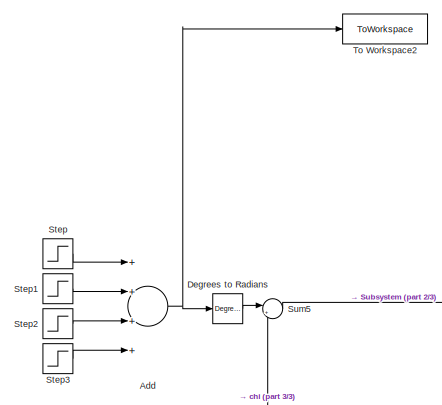
[diagram: root canvas - part 1/3, top left region]
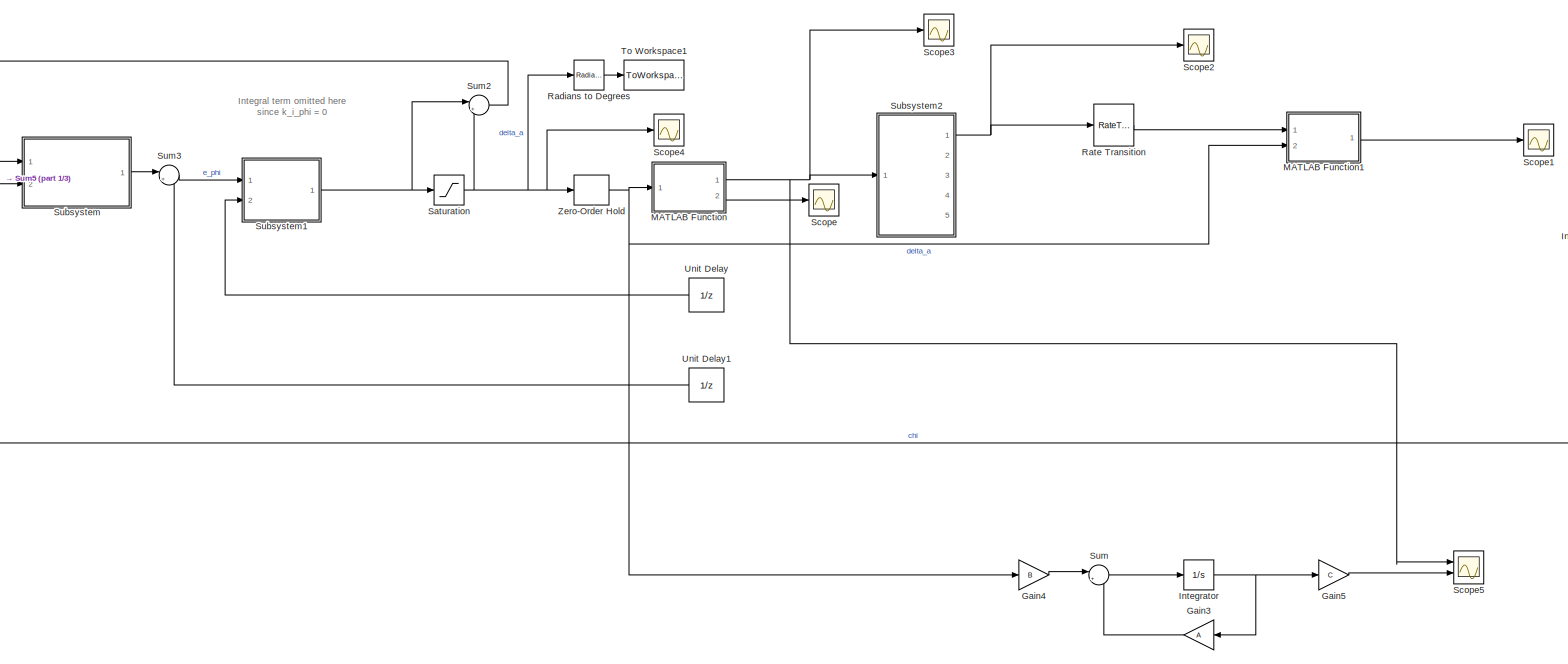
[diagram: root canvas - part 2/3, center side, full height]
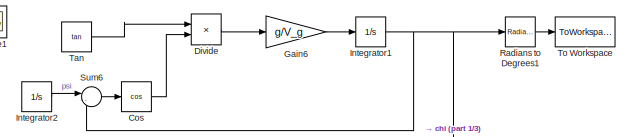
[diagram: root canvas - part 3/3, middle right region]
MODEL slx_63841fce203e
KIND model
CONFIG AbsTol = auto
CONFIG EnableMultiTasking = off
CONFIG FixedStep = 0.01
CONFIG MaxStep = auto
CONFIG MinStep = auto
CONFIG RelTol = 1e-3
CONFIG SampleTimeConstraint = Unconstrained
CONFIG Solver = FixedStepAuto
CONFIG SolverName = FixedStepAuto
CONFIG StartTime = 0.0
CONFIG StopTime = 200
BLOCK [Sum] Add
  InputSameDT = off
  Inputs = ++++
  OutDataTypeStr = Inherit: Inherit via internal rule
  Ports = [4, 1]
  SaturateOnIntegerOverflow = off
BLOCK [Trigonometry] Cos
  Operator = cos
  Ports = [1, 1]
BLOCK [Reference] Degrees to Radians  REF=simulink_extras/Transformations/Degrees to
Radians
  Ports = [1, 1]
  SourceBlock = simulink_extras/Transformations/Degrees to\nRadians
  SourceProductBaseCode = SL
  SourceProductName = Simulink
  SourceType = DegreesToRadians
BLOCK [Product] Divide
  InputSameDT = off
  Inputs = **
  OutDataTypeStr = Inherit: Inherit via internal rule
  Ports = [2, 1]
  RndMeth = Floor
  SaturateOnIntegerOverflow = off
BLOCK [Gain] Gain3
  Gain = A
  Multiplication = Matrix(K*u)
  OutDataTypeStr = Inherit: Inherit via internal rule
  ParamDataTypeStr = Inherit: Inherit via internal rule
  SaturateOnIntegerOverflow = off
BLOCK [Gain] Gain4
  Gain = B
  Multiplication = Matrix(K*u)
  OutDataTypeStr = Inherit: Inherit via internal rule
  ParamDataTypeStr = Inherit: Inherit via internal rule
  SaturateOnIntegerOverflow = off
BLOCK [Gain] Gain5
  Gain = C
  Multiplication = Matrix(K*u)
  OutDataTypeStr = Inherit: Inherit via internal rule
  ParamDataTypeStr = Inherit: Inherit via internal rule
  SaturateOnIntegerOverflow = off
BLOCK [Gain] Gain6
  Gain = g/V_g
  OutDataTypeStr = Inherit: Inherit via internal rule
  ParamDataTypeStr = Inherit: Inherit via internal rule
  SaturateOnIntegerOverflow = off
BLOCK [Integrator] Integrator
  Ports = [1, 1]
BLOCK [Integrator] Integrator1
  Ports = [1, 1]
BLOCK [Integrator] Integrator2
  Ports = [1, 1]
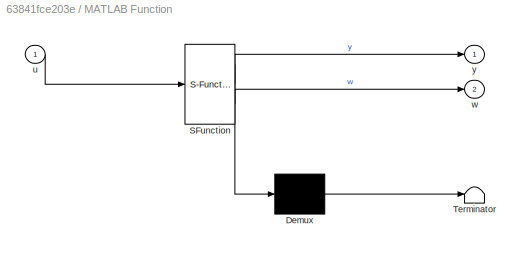
BLOCK [SubSystem] MATLAB Function
  ErrorFcn = Stateflow.Translate.translate
  PermitHierarchicalResolution = ExplicitOnly
  Ports = [1, 2]
  RequestExecContextInheritance = off
  SFBlockType = MATLAB Function
  TreatAsAtomicUnit = on
BLOCK [Demux] MATLAB Function/ Demux 
  Outputs = 1
  Ports = [1, 1]
BLOCK [S-Function] MATLAB Function/ SFunction 
  EnableBusSupport = on
  FunctionName = sf_sfun
  PortCounts = [1 3]
  Ports = [1, 3]
  SFcnIsStateOwnerBlock = off
  SFunctionDeploymentMode = off
  Tag = Stateflow S-Function autopilot_with_kalman 2
BLOCK [Terminator] MATLAB Function/ Terminator 
BLOCK [Inport] MATLAB Function/u
  IconDisplay = Port number
BLOCK [Outport] MATLAB Function/w
  IconDisplay = Port number
  Port = 2
BLOCK [Outport] MATLAB Function/y
  IconDisplay = Port number
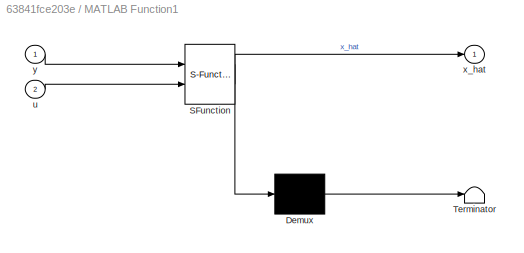
BLOCK [SubSystem] MATLAB Function1
  ErrorFcn = Stateflow.Translate.translate
  PermitHierarchicalResolution = ExplicitOnly
  Ports = [2, 1]
  RequestExecContextInheritance = off
  SFBlockType = MATLAB Function
  TreatAsAtomicUnit = on
BLOCK [Demux] MATLAB Function1/ Demux 
  Outputs = 1
  Ports = [1, 1]
BLOCK [S-Function] MATLAB Function1/ SFunction 
  EnableBusSupport = on
  FunctionName = sf_sfun
  PortCounts = [2 2]
  Ports = [2, 2]
  SFcnIsStateOwnerBlock = off
  SFunctionDeploymentMode = off
  Tag = Stateflow S-Function autopilot_with_kalman 1
BLOCK [Terminator] MATLAB Function1/ Terminator 
BLOCK [Inport] MATLAB Function1/u
  IconDisplay = Port number
  Port = 2
BLOCK [Outport] MATLAB Function1/x_hat
  IconDisplay = Port number
BLOCK [Inport] MATLAB Function1/y
  IconDisplay = Port number
BLOCK [Reference] Radians to Degrees  REF=simulink_extras/Transformations/Radians
to Degrees
  Ports = [1, 1]
  SourceBlock = simulink_extras/Transformations/Radians\nto Degrees
  SourceProductBaseCode = SL
  SourceProductName = Simulink
  SourceType = RadiansToDegrees
BLOCK [Reference] Radians to Degrees1  REF=simulink_extras/Transformations/Radians
to Degrees
  Ports = [1, 1]
  SourceBlock = simulink_extras/Transformations/Radians\nto Degrees
  SourceProductBaseCode = SL
  SourceProductName = Simulink
  SourceType = RadiansToDegrees
BLOCK [RateTransition] Rate Transition
BLOCK [Saturate] Saturation
  InputPortMap = u0
  LowerLimit = -pi/6
  Ports = [1, 1]
  UpperLimit = pi/6
BLOCK [Scope] Scope
  Floating = off
  NumInputPorts = 1
  Ports = [1]
  ScopeSpecificationString = Simulink.scopes.TimeScopeBlockCfg('CurrentConfiguration', extmgr.ConfigurationSet(extmgr.Configuration('Core','General UI',true),extmgr.Configuration('Core','Source UI',true),extmgr.Configuration('Sources','WiredSimulink',true),extmgr.Configuration('Visuals','Time Domain',true,'SerializedDisplays',{struct('MinYLimReal','-0.00487','MaxYLimReal','0.00504','YLabelReal','','MinYLimMag','0.00000','MaxY...<+1427ch>
BLOCK [Scope] Scope1
  Floating = off
  NumInputPorts = 1
  Ports = [1]
  ScopeSpecificationString = Simulink.scopes.TimeScopeBlockCfg('CurrentConfiguration', extmgr.ConfigurationSet(extmgr.Configuration('Core','General UI',true),extmgr.Configuration('Core','Source UI',true),extmgr.Configuration('Sources','WiredSimulink',true,'DataLoggingVariableName','ScopeData1'),extmgr.Configuration('Visuals','Time Domain',true),extmgr.Configuration('Tools','Plot Navigation',true),extmgr.Configuration('Tools',...<+40ch>
BLOCK [Scope] Scope2
  Floating = off
  NumInputPorts = 1
  Ports = [1]
  ScopeSpecificationString = Simulink.scopes.TimeScopeBlockCfg('CurrentConfiguration', extmgr.ConfigurationSet(extmgr.Configuration('Core','General UI',true),extmgr.Configuration('Core','Source UI',true),extmgr.Configuration('Sources','WiredSimulink',true,'DataLoggingVariableName','ScopeData2'),extmgr.Configuration('Visuals','Time Domain',true,'SerializedDisplays',{struct('MinYLimReal','-2.6794','MaxYLimReal','2.1601','YLabel...<+1384ch>
BLOCK [Scope] Scope3
  Floating = off
  NumInputPorts = 1
  Ports = [1]
  ScopeSpecificationString = Simulink.scopes.TimeScopeBlockCfg('CurrentConfiguration', extmgr.ConfigurationSet(extmgr.Configuration('Core','General UI',true),extmgr.Configuration('Core','Source UI',true),extmgr.Configuration('Sources','WiredSimulink',true,'DataLoggingVariableName','ScopeData3'),extmgr.Configuration('Visuals','Time Domain',true,'SerializedDisplays',{struct('MinYLimReal','-12.85599','MaxYLimReal','1.49964','YLa...<+1448ch>
BLOCK [Scope] Scope4
  Floating = off
  NumInputPorts = 1
  Ports = [1]
  ScopeSpecificationString = Simulink.scopes.TimeScopeBlockCfg('CurrentConfiguration', extmgr.ConfigurationSet(extmgr.Configuration('Core','General UI',true),extmgr.Configuration('Core','Source UI',true),extmgr.Configuration('Sources','WiredSimulink',true,'DataLoggingVariableName','ScopeData4'),extmgr.Configuration('Visuals','Time Domain',true,'SerializedDisplays',{struct('MinYLimReal','-0.06545','MaxYLimReal','0.58905','YLab...<+1366ch>
BLOCK [Scope] Scope5
  Floating = off
  NumInputPorts = 2
  Ports = [2]
  ScopeSpecificationString = Simulink.scopes.TimeScopeBlockCfg('CurrentConfiguration', extmgr.ConfigurationSet(extmgr.Configuration('Core','General UI',true),extmgr.Configuration('Core','Source UI',true),extmgr.Configuration('Sources','WiredSimulink',true,'DataLoggingVariableName','ScopeData5'),extmgr.Configuration('Visuals','Time Domain',true,'SerializedDisplays',{struct('MinYLimReal','-12.93904','MaxYLimReal','1.50887','YLa...<+1488ch>
BLOCK [Step] Step
  After = 7.5
  SampleTime = 0
  Time = 100
BLOCK [Step] Step1
  After = 7.5
  SampleTime = 0
  Time = 150
BLOCK [Step] Step2
  After = -15
  SampleTime = 0
  Time = 250
BLOCK [Step] Step3
  After = 0
  SampleTime = 0
  Time = 300
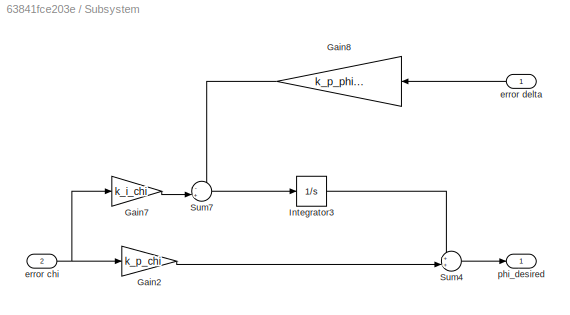
BLOCK [SubSystem] Subsystem
  Ports = [2, 1]
  RequestExecContextInheritance = off
BLOCK [Gain] Subsystem/Gain2
  Gain = k_p_chi
  OutDataTypeStr = Inherit: Inherit via internal rule
  ParamDataTypeStr = Inherit: Inherit via internal rule
  SaturateOnIntegerOverflow = off
BLOCK [Gain] Subsystem/Gain7
  Gain = k_i_chi
  OutDataTypeStr = Inherit: Inherit via internal rule
  ParamDataTypeStr = Inherit: Inherit via internal rule
  SaturateOnIntegerOverflow = off
BLOCK [Gain] Subsystem/Gain8
  Gain = k_p_phi*k_p_chi*0.5
  OutDataTypeStr = Inherit: Inherit via internal rule
  ParamDataTypeStr = Inherit: Inherit via internal rule
  SaturateOnIntegerOverflow = off
BLOCK [Integrator] Subsystem/Integrator3
  Ports = [1, 1]
BLOCK [Sum] Subsystem/Sum4
  IconShape = round
  InputSameDT = off
  Inputs = ++|
  OutDataTypeStr = Inherit: Inherit via internal rule
  Ports = [2, 1]
  SaturateOnIntegerOverflow = off
BLOCK [Sum] Subsystem/Sum7
  IconShape = round
  InputSameDT = off
  Inputs = -+|
  OutDataTypeStr = Inherit: Inherit via internal rule
  Ports = [2, 1]
  SaturateOnIntegerOverflow = off
BLOCK [Inport] Subsystem/error chi
  IconDisplay = Port number
  Port = 2
BLOCK [Inport] Subsystem/error delta
  IconDisplay = Port number
BLOCK [Outport] Subsystem/phi_desired
  IconDisplay = Port number
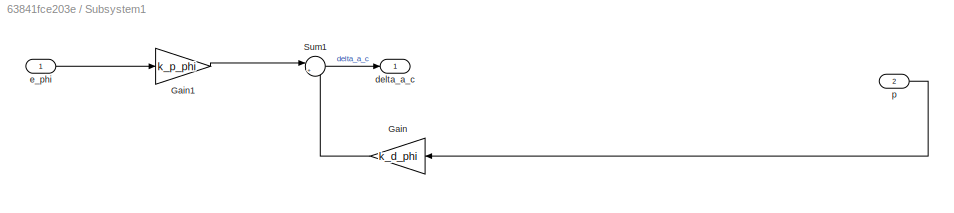
BLOCK [SubSystem] Subsystem1
  Ports = [2, 1]
  RequestExecContextInheritance = off
BLOCK [Gain] Subsystem1/Gain
  Gain = k_d_phi
  OutDataTypeStr = Inherit: Inherit via internal rule
  ParamDataTypeStr = Inherit: Inherit via internal rule
  SaturateOnIntegerOverflow = off
BLOCK [Gain] Subsystem1/Gain1
  Gain = k_p_phi
  OutDataTypeStr = Inherit: Inherit via internal rule
  ParamDataTypeStr = Inherit: Inherit via internal rule
  SaturateOnIntegerOverflow = off
BLOCK [Sum] Subsystem1/Sum1
  IconShape = round
  InputSameDT = off
  Inputs = |+-
  OutDataTypeStr = Inherit: Inherit via internal rule
  Ports = [2, 1]
  SaturateOnIntegerOverflow = off
BLOCK [Outport] Subsystem1/delta_a_c
  IconDisplay = Port number
BLOCK [Inport] Subsystem1/e_phi
  IconDisplay = Port number
BLOCK [Inport] Subsystem1/p
  IconDisplay = Port number
  Port = 2
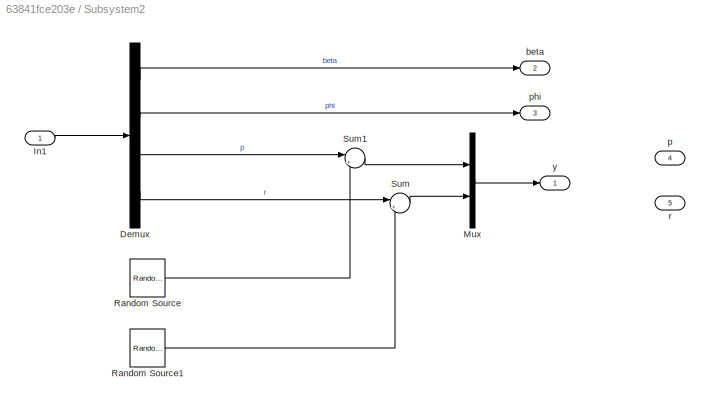
BLOCK [SubSystem] Subsystem2
  Ports = [1, 5]
  RequestExecContextInheritance = off
BLOCK [Demux] Subsystem2/Demux
  DisplayOption = bar
  Ports = [1, 4]
BLOCK [Inport] Subsystem2/In1
  IconDisplay = Port number
BLOCK [Mux] Subsystem2/Mux
  DisplayOption = bar
  Inputs = 2
  Ports = [2, 1]
BLOCK [Reference] Subsystem2/Random Source  REF=dspsrcs4/Random
Source
  Ports = [0, 1]
  SourceBlock = dspsrcs4/Random\nSource
  SourceProductBaseCode = DS
  SourceProductName = DSP System Toolbox
  SourceType = Random Source
  UserDataPersistent = on
BLOCK [Reference] Subsystem2/Random Source1  REF=dspsrcs4/Random
Source
  Ports = [0, 1]
  SourceBlock = dspsrcs4/Random\nSource
  SourceProductBaseCode = DS
  SourceProductName = DSP System Toolbox
  SourceType = Random Source
  UserDataPersistent = on
BLOCK [Sum] Subsystem2/Sum
  IconShape = round
  InputSameDT = off
  Inputs = |++
  OutDataTypeStr = Inherit: Inherit via internal rule
  Ports = [2, 1]
  SaturateOnIntegerOverflow = off
BLOCK [Sum] Subsystem2/Sum1
  IconShape = round
  InputSameDT = off
  Inputs = |++
  OutDataTypeStr = Inherit: Inherit via internal rule
  Ports = [2, 1]
  SaturateOnIntegerOverflow = off
BLOCK [Outport] Subsystem2/beta
  IconDisplay = Port number
  Port = 2
BLOCK [Outport] Subsystem2/p
  IconDisplay = Port number
  Port = 4
BLOCK [Outport] Subsystem2/phi
  IconDisplay = Port number
  Port = 3
BLOCK [Outport] Subsystem2/r
  IconDisplay = Port number
  Port = 5
BLOCK [Outport] Subsystem2/y
  IconDisplay = Port number
BLOCK [Sum] Sum
  IconShape = round
  InputSameDT = off
  Inputs = |++
  OutDataTypeStr = Inherit: Inherit via internal rule
  Ports = [2, 1]
  SaturateOnIntegerOverflow = off
BLOCK [Sum] Sum2
  IconShape = round
  InputSameDT = off
  Inputs = |+-
  OutDataTypeStr = Inherit: Inherit via internal rule
  Ports = [2, 1]
  SaturateOnIntegerOverflow = off
BLOCK [Sum] Sum3
  IconShape = round
  InputSameDT = off
  Inputs = |+-
  OutDataTypeStr = Inherit: Inherit via internal rule
  Ports = [2, 1]
  SaturateOnIntegerOverflow = off
BLOCK [Sum] Sum5
  IconShape = round
  InputSameDT = off
  Inputs = |+-
  OutDataTypeStr = Inherit: Inherit via internal rule
  Ports = [2, 1]
  SaturateOnIntegerOverflow = off
BLOCK [Sum] Sum6
  IconShape = round
  InputSameDT = off
  Inputs = |-+
  OutDataTypeStr = Inherit: Inherit via internal rule
  Ports = [2, 1]
  SaturateOnIntegerOverflow = off
BLOCK [Trigonometry] Tan
  Operator = tan
  Ports = [1, 1]
BLOCK [ToWorkspace] To Workspace
  FixptAsFi = on
  MaxDataPoints = inf
  Ports = [1]
  SampleTime = -1
  SaveFormat = Timeseries
  VariableName = chi
BLOCK [ToWorkspace] To Workspace1
  FixptAsFi = on
  MaxDataPoints = inf
  Ports = [1]
  SampleTime = -1
  SaveFormat = Timeseries
  VariableName = delta_control
BLOCK [ToWorkspace] To Workspace2
  FixptAsFi = on
  MaxDataPoints = inf
  Ports = [1]
  SampleTime = -1
  SaveFormat = Timeseries
  VariableName = chi_control
BLOCK [UnitDelay] Unit Delay
  HasFrameUpgradeWarning = on
  SampleTime = -1
BLOCK [UnitDelay] Unit Delay1
  HasFrameUpgradeWarning = on
  SampleTime = -1
BLOCK [ZeroOrderHold] Zero-Order Hold
  SampleTime = -1
ANNOTATION (root): Integral term omitted here since k_i_phi = 0
NET Add:1 -> Degrees to Radians:1, To Workspace2:1
LINE Cos:1 -> Divide:2
LINE Degrees to Radians:1 -> Sum5:1
LINE Divide:1 -> Gain6:1
LINE Gain3:1 -> Sum:2
LINE Gain4:1 -> Sum:1
LINE Gain5:1 -> Scope5:2
LINE Gain6:1 -> Integrator1:1
NET Integrator1:1 -> Radians to Degrees1:1, Sum5:2, Sum6:2
LINE Integrator2:1 -> Sum6:1
NET Integrator:1 -> Gain3:1, Gain5:1
LINE MATLAB Function1:1 -> Scope1:1
NET MATLAB Function:1 -> Scope3:1, Scope5:1, Subsystem2:1
LINE MATLAB Function:2 -> Scope:1
LINE Radians to Degrees1:1 -> To Workspace:1
LINE Radians to Degrees:1 -> To Workspace1:1
LINE Rate Transition:1 -> MATLAB Function1:1
NET Saturation:1 -> Radians to Degrees:1, Scope4:1, Sum2:2, Zero-Order Hold:1
LINE Step1:1 -> Add:2
LINE Step2:1 -> Add:3
LINE Step3:1 -> Add:4
LINE Step:1 -> Add:1
LINE Subsystem/Gain2:1 -> Subsystem/Sum4:2
LINE Subsystem/Gain7:1 -> Subsystem/Sum7:2
LINE Subsystem/Gain8:1 -> Subsystem/Sum7:1
LINE Subsystem/Integrator3:1 -> Subsystem/Sum4:1
LINE Subsystem/Sum4:1 -> Subsystem/phi_desired:1
LINE Subsystem/Sum7:1 -> Subsystem/Integrator3:1
NET Subsystem/error chi:1 -> Subsystem/Gain2:1, Subsystem/Gain7:1
LINE Subsystem/error delta:1 -> Subsystem/Gain8:1
LINE Subsystem1/Gain1:1 -> Subsystem1/Sum1:1
LINE Subsystem1/Gain:1 -> Subsystem1/Sum1:2
LINE Subsystem1/Sum1:1 -> Subsystem1/delta_a_c:1
LINE Subsystem1/e_phi:1 -> Subsystem1/Gain1:1
LINE Subsystem1/p:1 -> Subsystem1/Gain:1
NET Subsystem1:1 -> Saturation:1, Sum2:1
LINE Subsystem2/Demux:1 -> Subsystem2/beta:1
LINE Subsystem2/Demux:2 -> Subsystem2/phi:1
LINE Subsystem2/Demux:3 -> Subsystem2/Sum1:1
LINE Subsystem2/Demux:4 -> Subsystem2/Sum:1
LINE Subsystem2/In1:1 -> Subsystem2/Demux:1
LINE Subsystem2/Mux:1 -> Subsystem2/y:1
LINE Subsystem2/Random Source1:1 -> Subsystem2/Sum:2
LINE Subsystem2/Random Source:1 -> Subsystem2/Sum1:2
LINE Subsystem2/Sum1:1 -> Subsystem2/Mux:1
LINE Subsystem2/Sum:1 -> Subsystem2/Mux:2
NET Subsystem2:1 -> Rate Transition:1, Scope2:1
LINE Subsystem:1 -> Sum3:1
LINE Sum2:1 -> Subsystem:1
LINE Sum3:1 -> Subsystem1:1
LINE Sum5:1 -> Subsystem:2
LINE Sum6:1 -> Cos:1
LINE Sum:1 -> Integrator:1
LINE Tan:1 -> Divide:1
LINE Unit Delay1:1 -> Sum3:2
LINE Unit Delay:1 -> Subsystem1:2
NET Zero-Order Hold:1 -> Gain4:1, MATLAB Function1:2, MATLAB Function:1
note: NET lines group one-source signal fan-out (src -> all destinations, sorted); 1:1 wires keep LINE
CHART MATLAB Function1 states=1 transitions=1
  STATE_LABEL 'eML_blk_kernel()'
  STATE_LABEL "SCRIPT:\nfunction x_hat = fcn(y, u)\n    persistent init_flag P_a_priori x_hat_a_priori P_post_priori y_a_priori S \n\n    if isempty(init_flag)\n        S = load('kalman_variables');\n        init_flag = 1;\n        P_a_priori = S.P0_a_priori;\n        x_hat_a_priori = S.x_hat_0_a_priori;\n    end\n    \n    kalman_gain = P_a_priori*transpose(S.C)*inv(S.C*P_a_priori*transpose(S.C)+S.R);\n    P_post_priori = ...<+432ch>"
CHART MATLAB Function states=1 transitions=1
  STATE_LABEL 'eML_blk_kernel()'
  STATE_LABEL 'SCRIPT:\nfunction [y, w] = state_space(u)\n% Generate the output of the state space\n\n    % Persistent variables to be kept between function calls\n    persistent counter; % Variable for checking if it is the first iteration.\n    persistent x;       % The state x\n    \n   % The next line is necessary for generating unique process noise for every simulation.\n   % Otherwise, the noise will be equal every...<+1601ch>'
